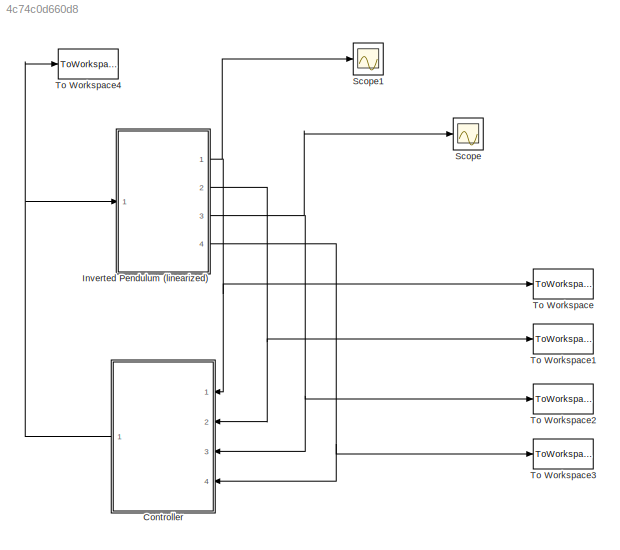
MODEL slx_4c74c0d660d8
KIND model
CONFIG AbsTol = auto
CONFIG EnableMultiTasking = off
CONFIG FixedStep = 0.001
CONFIG MaxStep = auto
CONFIG MinStep = auto
CONFIG RelTol = 1e-3
CONFIG SampleTimeConstraint = Unconstrained
CONFIG Solver = ode4
CONFIG SolverName = ode4
CONFIG StartTime = 0.0
CONFIG StopTime = 10
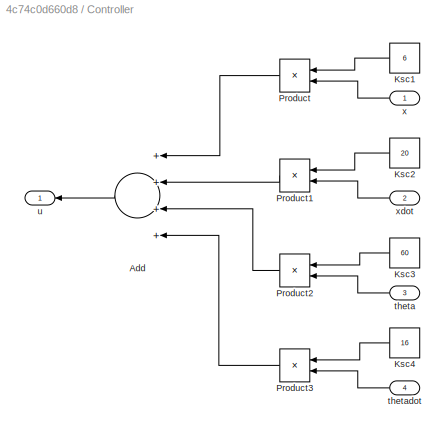
BLOCK [SubSystem] Controller
  Ports = [4, 1]
  RequestExecContextInheritance = off
BLOCK [Sum] Controller/Add
  InputSameDT = off
  Inputs = ++++
  OutDataTypeStr = Inherit: Inherit via internal rule
  Ports = [4, 1]
  SaturateOnIntegerOverflow = off
BLOCK [Constant] Controller/Ksc1
  Value = 6
BLOCK [Constant] Controller/Ksc2
  Value = 20
BLOCK [Constant] Controller/Ksc3
  Value = 60
BLOCK [Constant] Controller/Ksc4
  Value = 16
BLOCK [Product] Controller/Product
  InputSameDT = off
  OutDataTypeStr = Inherit: Inherit via internal rule
  Ports = [2, 1]
  RndMeth = Floor
  SaturateOnIntegerOverflow = off
BLOCK [Product] Controller/Product1
  InputSameDT = off
  OutDataTypeStr = Inherit: Inherit via internal rule
  Ports = [2, 1]
  RndMeth = Floor
  SaturateOnIntegerOverflow = off
BLOCK [Product] Controller/Product2
  InputSameDT = off
  OutDataTypeStr = Inherit: Inherit via internal rule
  Ports = [2, 1]
  RndMeth = Floor
  SaturateOnIntegerOverflow = off
BLOCK [Product] Controller/Product3
  InputSameDT = off
  OutDataTypeStr = Inherit: Inherit via internal rule
  Ports = [2, 1]
  RndMeth = Floor
  SaturateOnIntegerOverflow = off
BLOCK [Inport] Controller/theta
  IconDisplay = Port number
  Port = 3
BLOCK [Inport] Controller/thetadot
  IconDisplay = Port number
  Port = 4
BLOCK [Outport] Controller/u
  IconDisplay = Port number
BLOCK [Inport] Controller/x
  IconDisplay = Port number
BLOCK [Inport] Controller/xdot
  IconDisplay = Port number
  Port = 2
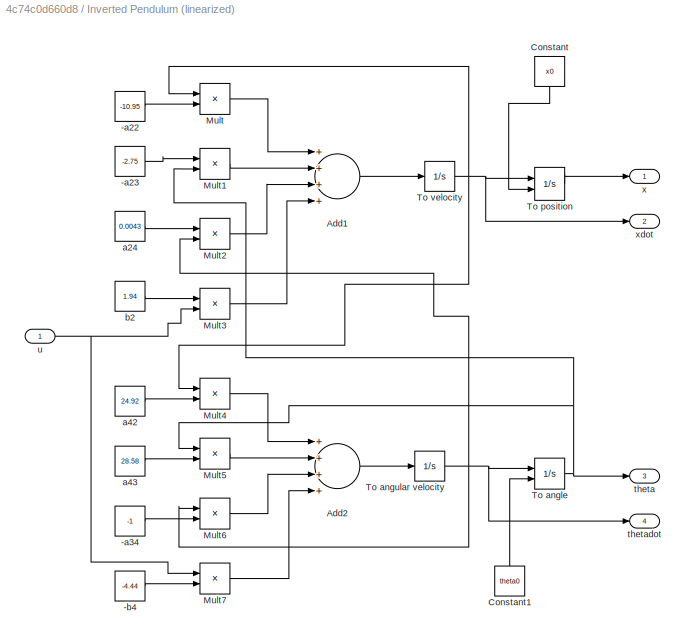
BLOCK [SubSystem] Inverted Pendulum (linearized)
  Ports = [1, 4]
  RequestExecContextInheritance = off
BLOCK [Constant] Inverted Pendulum (linearized)/-a22
  Value = -10.95
BLOCK [Constant] Inverted Pendulum (linearized)/-a23
  Value = -2.75
BLOCK [Constant] Inverted Pendulum (linearized)/-a34
  Value = -1
BLOCK [Constant] Inverted Pendulum (linearized)/-b4
  Value = -4.44
BLOCK [Sum] Inverted Pendulum (linearized)/Add1
  InputSameDT = off
  Inputs = ++++
  OutDataTypeStr = Inherit: Inherit via internal rule
  Ports = [4, 1]
  SaturateOnIntegerOverflow = off
BLOCK [Sum] Inverted Pendulum (linearized)/Add2
  InputSameDT = off
  Inputs = ++++
  OutDataTypeStr = Inherit: Inherit via internal rule
  Ports = [4, 1]
  SaturateOnIntegerOverflow = off
BLOCK [Constant] Inverted Pendulum (linearized)/Constant
  Value = x0
BLOCK [Constant] Inverted Pendulum (linearized)/Constant1
  Value = theta0
BLOCK [Product] Inverted Pendulum (linearized)/Mult
  InputSameDT = off
  Inputs = **
  OutDataTypeStr = Inherit: Inherit via internal rule
  Ports = [2, 1]
  RndMeth = Floor
  SaturateOnIntegerOverflow = off
BLOCK [Product] Inverted Pendulum (linearized)/Mult1
  InputSameDT = off
  Inputs = **
  OutDataTypeStr = Inherit: Inherit via internal rule
  Ports = [2, 1]
  RndMeth = Floor
  SaturateOnIntegerOverflow = off
BLOCK [Product] Inverted Pendulum (linearized)/Mult2
  InputSameDT = off
  Inputs = **
  OutDataTypeStr = Inherit: Inherit via internal rule
  Ports = [2, 1]
  RndMeth = Floor
  SaturateOnIntegerOverflow = off
BLOCK [Product] Inverted Pendulum (linearized)/Mult3
  InputSameDT = off
  Inputs = **
  OutDataTypeStr = Inherit: Inherit via internal rule
  Ports = [2, 1]
  RndMeth = Floor
  SaturateOnIntegerOverflow = off
BLOCK [Product] Inverted Pendulum (linearized)/Mult4
  InputSameDT = off
  Inputs = **
  OutDataTypeStr = Inherit: Inherit via internal rule
  Ports = [2, 1]
  RndMeth = Floor
  SaturateOnIntegerOverflow = off
BLOCK [Product] Inverted Pendulum (linearized)/Mult5
  InputSameDT = off
  Inputs = **
  OutDataTypeStr = Inherit: Inherit via internal rule
  Ports = [2, 1]
  RndMeth = Floor
  SaturateOnIntegerOverflow = off
BLOCK [Product] Inverted Pendulum (linearized)/Mult6
  InputSameDT = off
  Inputs = **
  OutDataTypeStr = Inherit: Inherit via internal rule
  Ports = [2, 1]
  RndMeth = Floor
  SaturateOnIntegerOverflow = off
BLOCK [Product] Inverted Pendulum (linearized)/Mult7
  InputSameDT = off
  Inputs = **
  OutDataTypeStr = Inherit: Inherit via internal rule
  Ports = [2, 1]
  RndMeth = Floor
  SaturateOnIntegerOverflow = off
BLOCK [Integrator] Inverted Pendulum (linearized)/To angle
  InitialCondition = 1.5
  InitialConditionSource = external
  Ports = [2, 1]
BLOCK [Integrator] Inverted Pendulum (linearized)/To angular velocity
  Ports = [1, 1]
BLOCK [Integrator] Inverted Pendulum (linearized)/To position
  InitialCondition = 1
  InitialConditionSource = external
  Ports = [2, 1]
BLOCK [Integrator] Inverted Pendulum (linearized)/To velocity
  Ports = [1, 1]
BLOCK [Constant] Inverted Pendulum (linearized)/a24
  Value = 0.0043
BLOCK [Constant] Inverted Pendulum (linearized)/a42
  Value = 24.92
BLOCK [Constant] Inverted Pendulum (linearized)/a43
  Value = 28.58
BLOCK [Constant] Inverted Pendulum (linearized)/b2
  Value = 1.94
BLOCK [Outport] Inverted Pendulum (linearized)/theta
  IconDisplay = Port number
  Port = 3
BLOCK [Outport] Inverted Pendulum (linearized)/thetadot
  IconDisplay = Port number
  Port = 4
BLOCK [Inport] Inverted Pendulum (linearized)/u
  IconDisplay = Port number
BLOCK [Outport] Inverted Pendulum (linearized)/x
  IconDisplay = Port number
BLOCK [Outport] Inverted Pendulum (linearized)/xdot
  IconDisplay = Port number
  Port = 2
BLOCK [Scope] Scope
  Floating = off
  NumInputPorts = 1
  Ports = [1]
  ScopeSpecificationString = Simulink.scopes.TimeScopeBlockCfg('CurrentConfiguration', extmgr.ConfigurationSet(extmgr.Configuration('Core','General UI',true),extmgr.Configuration('Core','Source UI',true),extmgr.Configuration('Sources','WiredSimulink',true),extmgr.Configuration('Visuals','Time Domain',true,'SerializedDisplays',{struct('MinYLimReal','-0.09575','MaxYLimReal','0.12175','YLabelReal','','MinYLimMag','0.00000','MaxY...<+1352ch>
BLOCK [Scope] Scope1
  Floating = off
  NumInputPorts = 1
  Ports = [1]
  ScopeSpecificationString = Simulink.scopes.TimeScopeBlockCfg('CurrentConfiguration', extmgr.ConfigurationSet(extmgr.Configuration('Core','General UI',true),extmgr.Configuration('Core','Source UI',true),extmgr.Configuration('Sources','WiredSimulink',true,'DataLoggingVariableName','ScopeData1'),extmgr.Configuration('Visuals','Time Domain',true,'SerializedDisplays',{struct('MinYLimReal','-0.06984','MaxYLimReal','0.68893','YLab...<+1391ch>
BLOCK [ToWorkspace] To Workspace
  Decimation = 2
  FixptAsFi = on
  MaxDataPoints = inf
  Ports = [1]
  SampleTime = 0.005
  Save2DSignal = 2-D array (concatenate along first dimension)
  VariableName = xx
BLOCK [ToWorkspace] To Workspace1
  Decimation = 2
  FixptAsFi = on
  MaxDataPoints = inf
  Ports = [1]
  SampleTime = 0.005
  Save2DSignal = 2-D array (concatenate along first dimension)
  VariableName = xxdot
BLOCK [ToWorkspace] To Workspace2
  Decimation = 2
  FixptAsFi = on
  MaxDataPoints = inf
  Ports = [1]
  SampleTime = 0.005
  Save2DSignal = 2-D array (concatenate along first dimension)
  VariableName = xtheta
BLOCK [ToWorkspace] To Workspace3
  Decimation = 2
  FixptAsFi = on
  MaxDataPoints = inf
  Ports = [1]
  SampleTime = 0.005
  Save2DSignal = 2-D array (concatenate along first dimension)
  VariableName = xthetadot
BLOCK [ToWorkspace] To Workspace4
  Decimation = 2
  FixptAsFi = on
  MaxDataPoints = inf
  Ports = [1]
  SampleTime = 0.005
  Save2DSignal = 2-D array (concatenate along first dimension)
  VariableName = u
LINE Controller/Add:1 -> Controller/u:1
LINE Controller/Ksc1:1 -> Controller/Product:1
LINE Controller/Ksc2:1 -> Controller/Product1:1
LINE Controller/Ksc3:1 -> Controller/Product2:1
LINE Controller/Ksc4:1 -> Controller/Product3:1
LINE Controller/Product1:1 -> Controller/Add:2
LINE Controller/Product2:1 -> Controller/Add:3
LINE Controller/Product3:1 -> Controller/Add:4
LINE Controller/Product:1 -> Controller/Add:1
LINE Controller/theta:1 -> Controller/Product2:2
LINE Controller/thetadot:1 -> Controller/Product3:2
LINE Controller/x:1 -> Controller/Product:2
LINE Controller/xdot:1 -> Controller/Product1:2
NET Controller:1 -> Inverted Pendulum (linearized):1, To Workspace4:1
LINE Inverted Pendulum (linearized)/-a22:1 -> Inverted Pendulum (linearized)/Mult:2
LINE Inverted Pendulum (linearized)/-a23:1 -> Inverted Pendulum (linearized)/Mult1:1
LINE Inverted Pendulum (linearized)/-a34:1 -> Inverted Pendulum (linearized)/Mult6:2
LINE Inverted Pendulum (linearized)/-b4:1 -> Inverted Pendulum (linearized)/Mult7:2
LINE Inverted Pendulum (linearized)/Add1:1 -> Inverted Pendulum (linearized)/To velocity:1
LINE Inverted Pendulum (linearized)/Add2:1 -> Inverted Pendulum (linearized)/To angular velocity:1
LINE Inverted Pendulum (linearized)/Constant1:1 -> Inverted Pendulum (linearized)/To angle:2
LINE Inverted Pendulum (linearized)/Constant:1 -> Inverted Pendulum (linearized)/To position:2
LINE Inverted Pendulum (linearized)/Mult1:1 -> Inverted Pendulum (linearized)/Add1:2
LINE Inverted Pendulum (linearized)/Mult2:1 -> Inverted Pendulum (linearized)/Add1:3
LINE Inverted Pendulum (linearized)/Mult3:1 -> Inverted Pendulum (linearized)/Add1:4
LINE Inverted Pendulum (linearized)/Mult4:1 -> Inverted Pendulum (linearized)/Add2:1
LINE Inverted Pendulum (linearized)/Mult5:1 -> Inverted Pendulum (linearized)/Add2:2
LINE Inverted Pendulum (linearized)/Mult6:1 -> Inverted Pendulum (linearized)/Add2:3
LINE Inverted Pendulum (linearized)/Mult7:1 -> Inverted Pendulum (linearized)/Add2:4
LINE Inverted Pendulum (linearized)/Mult:1 -> Inverted Pendulum (linearized)/Add1:1
NET Inverted Pendulum (linearized)/To angle:1 -> Inverted Pendulum (linearized)/Mult1:2, Inverted Pendulum (linearized)/Mult5:1, Inverted Pendulum (linearized)/theta:1
NET Inverted Pendulum (linearized)/To angular velocity:1 -> Inverted Pendulum (linearized)/Mult2:2, Inverted Pendulum (linearized)/Mult6:1, Inverted Pendulum (linearized)/To angle:1, Inverted Pendulum (linearized)/thetadot:1
LINE Inverted Pendulum (linearized)/To position:1 -> Inverted Pendulum (linearized)/x:1
NET Inverted Pendulum (linearized)/To velocity:1 -> Inverted Pendulum (linearized)/Mult4:1, Inverted Pendulum (linearized)/Mult:1, Inverted Pendulum (linearized)/To position:1, Inverted Pendulum (linearized)/xdot:1
LINE Inverted Pendulum (linearized)/a24:1 -> Inverted Pendulum (linearized)/Mult2:1
LINE Inverted Pendulum (linearized)/a42:1 -> Inverted Pendulum (linearized)/Mult4:2
LINE Inverted Pendulum (linearized)/a43:1 -> Inverted Pendulum (linearized)/Mult5:2
LINE Inverted Pendulum (linearized)/b2:1 -> Inverted Pendulum (linearized)/Mult3:1
NET Inverted Pendulum (linearized)/u:1 -> Inverted Pendulum (linearized)/Mult3:2, Inverted Pendulum (linearized)/Mult7:1
NET Inverted Pendulum (linearized):1 -> Controller:1, Scope1:1, To Workspace:1
NET Inverted Pendulum (linearized):2 -> Controller:2, To Workspace1:1
NET Inverted Pendulum (linearized):3 -> Controller:3, Scope:1, To Workspace2:1
NET Inverted Pendulum (linearized):4 -> Controller:4, To Workspace3:1
note: NET lines group one-source signal fan-out (src -> all destinations, sorted); 1:1 wires keep LINE
